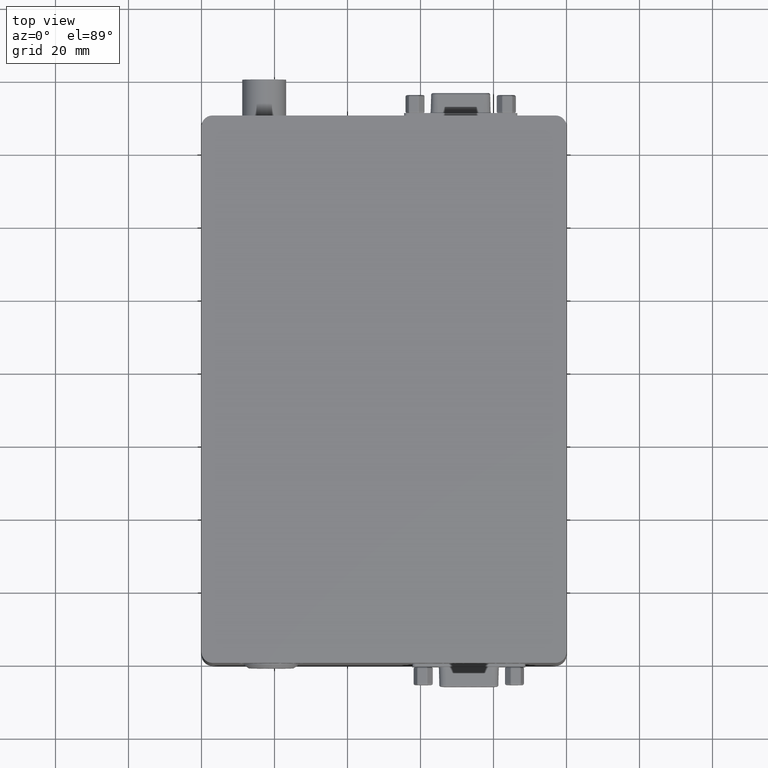
[diagram: clean part render]
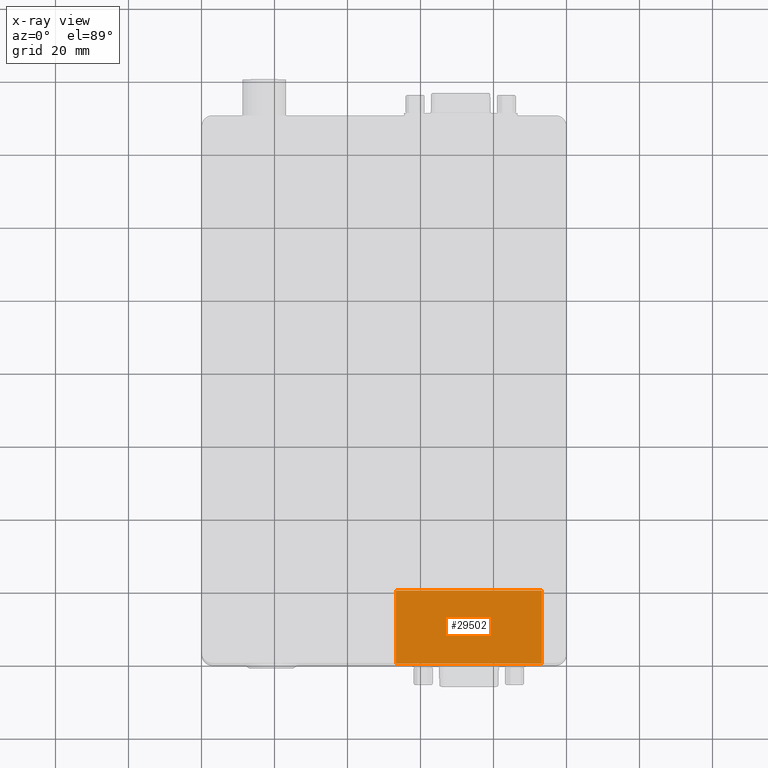
[diagram: x-ray — body ghosted, one internal face saturated and labeled with its STEP entity id]
A machine part, top view, then the same camera in x-ray: the body is ghosted and one INTERNAL B-rep face — a face not visible from any outside direction — is saturated and labeled: STEP entity #29502.
In plain terms, the highlighted planar face has unit normal (0, 0, 1).
Its self-contained STEP definition (entity closure, byte-faithful):
#4187 = VERTEX_POINT ( 'NONE', #40380 ) ;
#5277 = VECTOR ( 'NONE', #42562, 1000.000000000000000 ) ;
#5997 = VECTOR ( 'NONE', #41398, 1000.000000000000000 ) ;
#7205 = DIRECTION ( 'NONE',  ( 0.000000000000000000, 0.000000000000000000, 1.000000000000000000 ) ) ;
#10503 = EDGE_CURVE ( 'NONE', #45974, #51701, #48087, .T. ) ;
#11316 = EDGE_CURVE ( 'NONE', #45974, #49590, #14081, .T. ) ;
#12531 = ORIENTED_EDGE ( 'NONE', *, *, #10503, .F. ) ;
#12910 = EDGE_LOOP ( 'NONE', ( #33955, #14280, #12531, #25613 ) ) ;
#14081 = LINE ( 'NONE', #35698, #54128 ) ;
#14280 = ORIENTED_EDGE ( 'NONE', *, *, #51533, .F. ) ;
#15718 = LINE ( 'NONE', #43121, #5277 ) ;
#18009 = DIRECTION ( 'NONE',  ( -1.000000000000000000, 0.000000000000000000, -0.000000000000000000 ) ) ;
#22881 = AXIS2_PLACEMENT_3D ( 'NONE', #47475, #7205, #38176 ) ;
#23313 = LINE ( 'NONE', #27392, #5997 ) ;
#25613 = ORIENTED_EDGE ( 'NONE', *, *, #11316, .T. ) ;
#26479 = CARTESIAN_POINT ( 'NONE',  ( 53.24140425704833035, 20.00000000000000000, -11.42325786537896981 ) ) ;
#27392 = CARTESIAN_POINT ( 'NONE',  ( 53.24140425704833035, 0.000000000000000000, -11.42325786537896981 ) ) ;
#29502 = ADVANCED_FACE ( 'NONE', ( #29688 ), #42817, .F. ) ;
#29688 = FACE_OUTER_BOUND ( 'NONE', #12910, .T. ) ;
#30420 = CARTESIAN_POINT ( 'NONE',  ( 93.24140425704833035, 20.00000000000000000, -11.42325786537896981 ) ) ;
#33955 = ORIENTED_EDGE ( 'NONE', *, *, #38999, .T. ) ;
#35698 = CARTESIAN_POINT ( 'NONE',  ( 93.24140425704833035, 20.00000000000000000, -11.42325786537896981 ) ) ;
#38176 = DIRECTION ( 'NONE',  ( 0.000000000000000000, -1.000000000000000000, 0.000000000000000000 ) ) ;
#38999 = EDGE_CURVE ( 'NONE', #49590, #4187, #23313, .T. ) ;
#40216 = CARTESIAN_POINT ( 'NONE',  ( 93.24140425704833035, 0.000000000000000000, -11.42325786537896981 ) ) ;
#40380 = CARTESIAN_POINT ( 'NONE',  ( 53.24140425704833035, 0.000000000000000000, -11.42325786537896981 ) ) ;
#40663 = DIRECTION ( 'NONE',  ( 0.000000000000000000, -1.000000000000000000, 0.000000000000000000 ) ) ;
#41398 = DIRECTION ( 'NONE',  ( -1.000000000000000000, 0.000000000000000000, -0.000000000000000000 ) ) ;
#42562 = DIRECTION ( 'NONE',  ( 0.000000000000000000, -1.000000000000000000, 0.000000000000000000 ) ) ;
#42817 = PLANE ( 'NONE',  #22881 ) ;
#43121 = CARTESIAN_POINT ( 'NONE',  ( 53.24140425704833035, 20.00000000000000000, -11.42325786537896981 ) ) ;
#45974 = VERTEX_POINT ( 'NONE', #30420 ) ;
#47475 = CARTESIAN_POINT ( 'NONE',  ( 53.24140425704833035, 20.00000000000000000, -11.42325786537896981 ) ) ;
#48087 = LINE ( 'NONE', #26479, #48474 ) ;
#48474 = VECTOR ( 'NONE', #18009, 1000.000000000000000 ) ;
#49590 = VERTEX_POINT ( 'NONE', #40216 ) ;
#51533 = EDGE_CURVE ( 'NONE', #51701, #4187, #15718, .T. ) ;
#51701 = VERTEX_POINT ( 'NONE', #54767 ) ;
#54128 = VECTOR ( 'NONE', #40663, 1000.000000000000000 ) ;
#54767 = CARTESIAN_POINT ( 'NONE',  ( 53.24140425704833035, 20.00000000000000000, -11.42325786537896981 ) ) ;